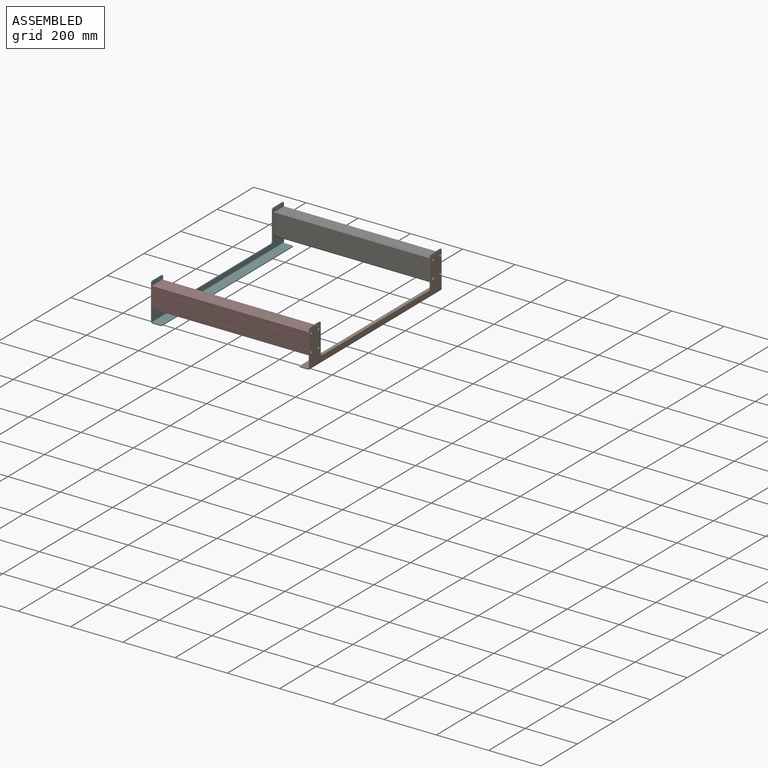
[diagram: assembled view]
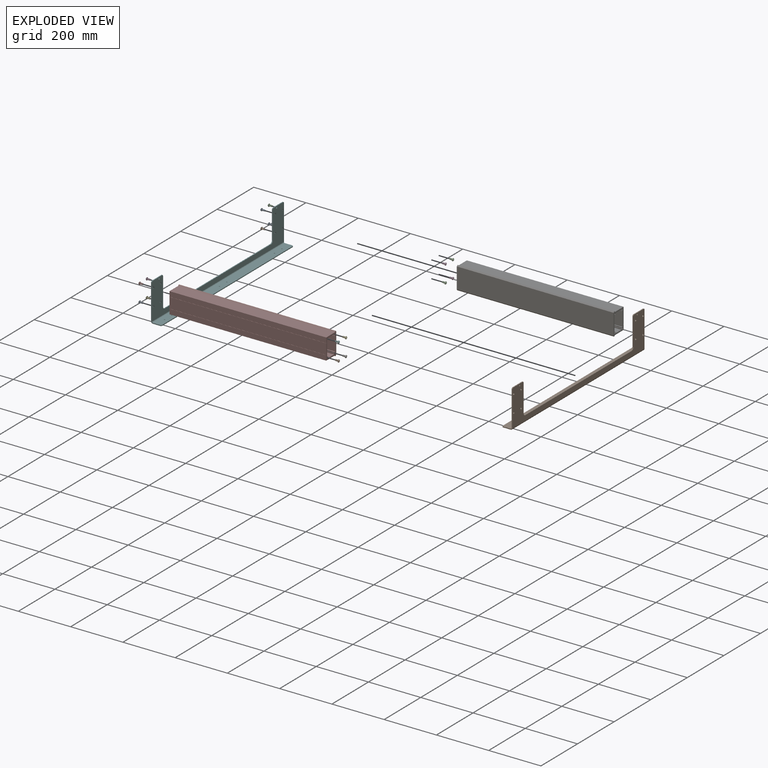
[diagram: exploded view]
GUIDED TOUR — MATED ASSEMBLY (Onshape document cfbdef88ee8c1fd4ca6eed88, AutoMate assembly cfbdef88ee8c1fd4ca6eed88_fefbfba56c5131276943adc2_0f6708e566215cdcc3e9fe7e_default)

This assembly has 20 components, labeled P0..P19 below (a component is one placed occurrence of a part; the same part can appear more than once), held together by 18 mates. A mate is a constraint between two components; its type names the relative motion it leaves free:
  FASTENED — locks the two components together rigidly (no relative motion).
Axis/direction vectors are unit vectors and 'through' points are millimeter coordinates, both in the assembly's world frame.

MATES
  1. FASTENED "Fastened 2": P18 <-> P17, direction (1.000, 0.000, 0.000) through (555.34, 199.08, 132.94) mm
  2. FASTENED "Fastened 1": P1 <-> P5, direction (-1.000, 0.000, 0.000) through (-52.10, 159.08, 67.94) mm
  3. FASTENED "Fastened 3": P6 <-> P5, direction (-1.000, 0.000, 0.000) through (-48.38, 159.08, 132.94) mm
  4. FASTENED "Fastened 1": P8 <-> P5, direction (-1.000, 0.000, 0.000) through (-52.10, 199.08, 67.94) mm
  5. FASTENED "Fastened 1": P15 <-> P5, direction (-1.000, 0.000, 0.000) through (-52.10, -507.65, 132.94) mm
  6. FASTENED "Fastened 2": P3 <-> P17, direction (1.000, 0.000, 0.000) through (555.34, 159.08, 132.94) mm
  7. FASTENED "Fastened 2": P14 <-> P17, direction (1.000, 0.000, 0.000) through (555.34, -467.65, 67.94) mm
  8. FASTENED "Fastened 2": P11 <-> P17, direction (1.000, 0.000, 0.000) through (555.34, 199.08, 67.94) mm
  9. FASTENED "Fastened 1": P0 <-> P5, direction (-1.000, 0.000, 0.000) through (-52.10, 159.08, 132.94) mm
  10. FASTENED "Fastened 1": P16 <-> P5, direction (-1.000, 0.000, 0.000) through (-52.10, -507.65, 67.94) mm
  11. FASTENED "Fastened 4": P7 <-> P5, direction (-1.000, 0.000, 0.000) through (-48.38, -467.65, 67.94) mm
  12. FASTENED "Fastened 2": P10 <-> P17, direction (1.000, 0.000, 0.000) through (555.34, 159.08, 67.94) mm
  13. FASTENED "Fastened 2": P12 <-> P17, direction (1.000, 0.000, 0.000) through (555.34, -467.65, 132.94) mm
  14. FASTENED "Fastened 1": P4 <-> P5, direction (-1.000, 0.000, 0.000) through (-52.10, -467.65, 67.94) mm
  15. FASTENED "Fastened 2": P13 <-> P17, direction (1.000, 0.000, 0.000) through (555.34, -507.65, 132.94) mm
  16. FASTENED "Fastened 1": P2 <-> P5, direction (-1.000, 0.000, 0.000) through (-52.10, 199.08, 132.94) mm
  17. FASTENED "Fastened 1": P19 <-> P5, direction (-1.000, 0.000, 0.000) through (-52.10, -467.65, 132.94) mm
  18. FASTENED "Fastened 2": P9 <-> P17, direction (1.000, 0.000, 0.000) through (555.34, -507.65, 67.94) mm

ASSEMBLY ORDER
  1. P14 — the base component [order verified]
  2. P12 [order verified]
  3. P7 [order verified]
  4. P19 [order verified]
  5. P4 [order verified]
  6. P10 [order verified]
  7. P3 [order verified]
  8. P1 [order verified]
  9. P0 [order verified]
  10. P6 [order verified]
  11. P18 [order verified]
  12. P11 [order verified]
  13. P16 [order verified]
  14. P15 [order verified]
  15. P8 [order verified]
  16. P2 [order verified]
  17. P13 [order verified]
  18. P9 [order verified]
  19. P17 [order verified]
  20. P5 [order verified]
(P2, P4, P6, P7, P8, P9, P11, P13, P15, P16, P18, P19 verified with a relaxed clearance tolerance: the source model stores slight part interference there.)
Order-tag legend:
  [order verified] — this step's position reverses a verified removal order: the component was checked to insert without passing through the ones already placed.

Of the 20 components, 2 carry the full construction recipe — the FeatureScript program that regenerates the part's solid from scratch; the rest are supplied as boundary geometry only.
Because this assembly has more than 12 components, the tour below covers the 12 most significant ones individually (every recipe-attached component first, then the largest by part volume), in assembly order; the remaining 8 are summarized together in a grouped section at the end.
Each toured component is shown spotlighted twice — in the assembled view, then in the exploded view, where a leader line traces a displaced component back to its assembled socket (saturated green if recipe-attached, orange if geometry-only; every other component desaturated gray) — followed by its recipe or geometry summary and the mates that hold it.
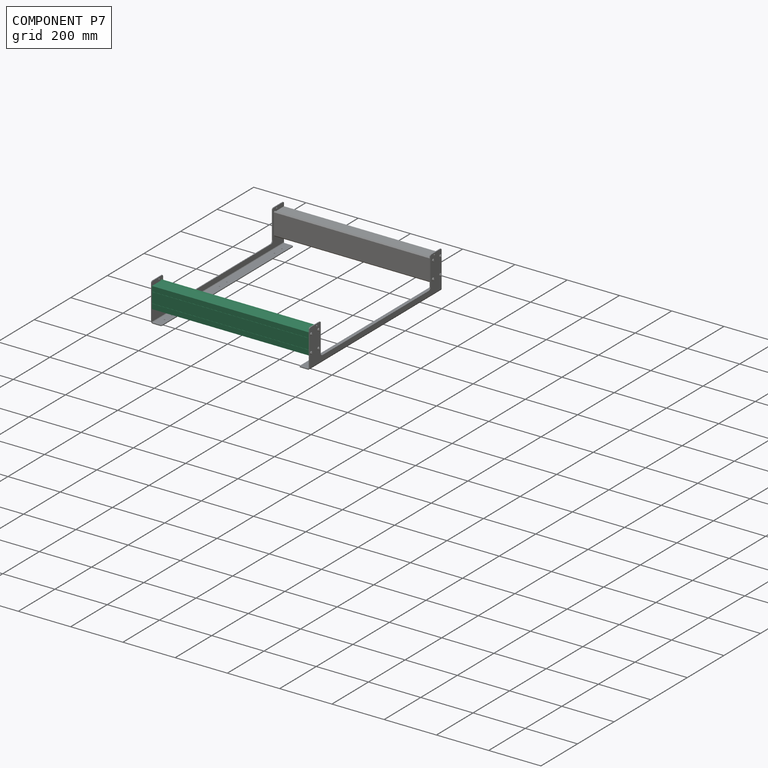
[diagram: component P7 — assembled]
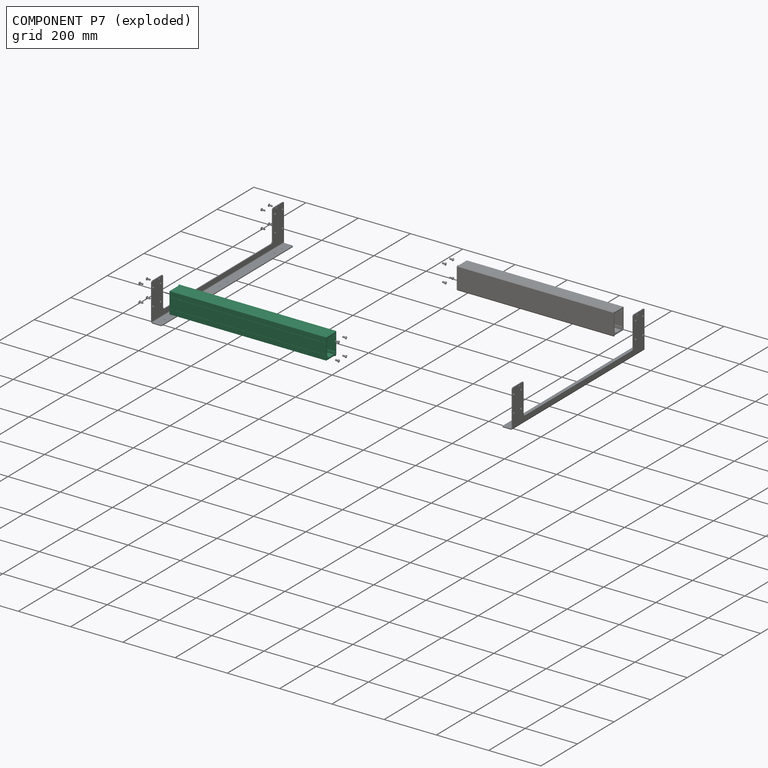
[diagram: component P7 — exploded]
COMPONENT P7 — same part as P6 (CADFS 00185293); its construction recipe is shown at P6.
Held by: FASTENED mate "Fastened 4" to P5.
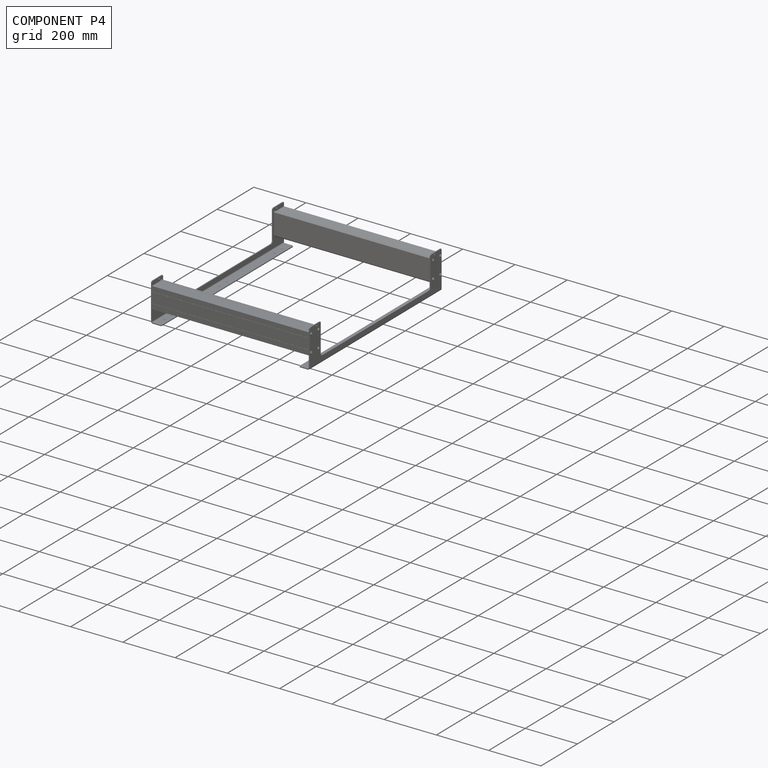
[diagram: component P4 — assembled]
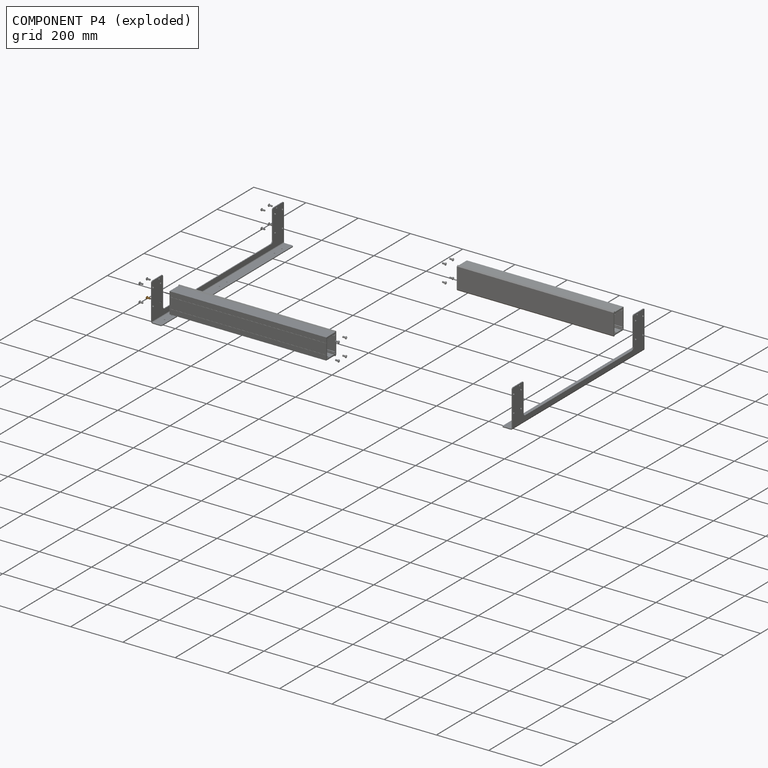
[diagram: component P4 — exploded]
COMPONENT P4 — geometry summary (no construction recipe available for this part):
  bounding box: 16.5 x 11.4 x 11.4 mm
  B-rep topology: 1 solid, 47 faces, 246 edges
  volume: 449 mm^3 (21% of its bounding box)
Held by: FASTENED mate "Fastened 1" to P5.
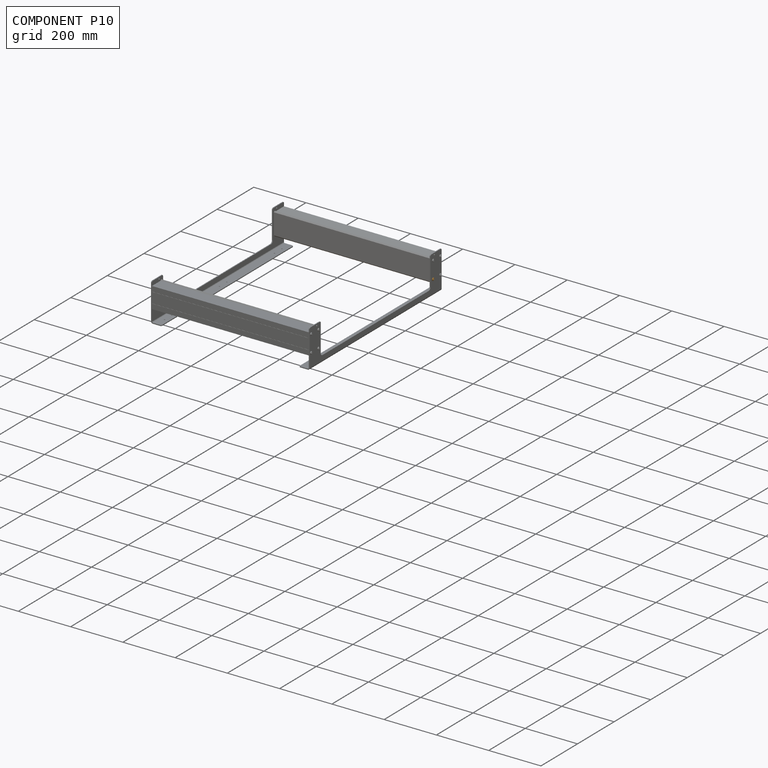
[diagram: component P10 — assembled]
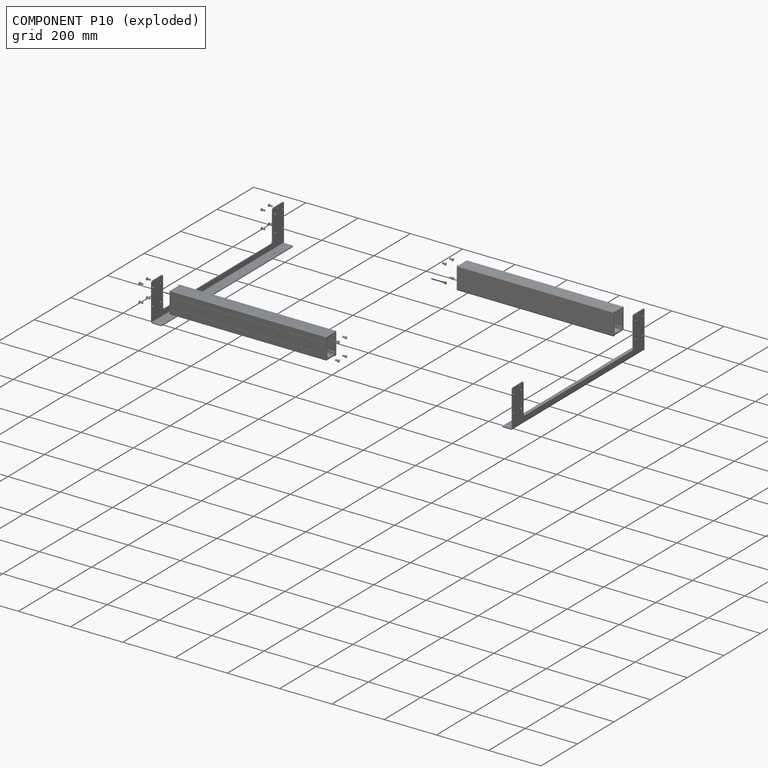
[diagram: component P10 — exploded]
COMPONENT P10 — geometry summary (no construction recipe available for this part):
  bounding box: 16.5 x 11.4 x 11.4 mm
  B-rep topology: 1 solid, 47 faces, 246 edges
  volume: 449 mm^3 (21% of its bounding box)
Held by: FASTENED mate "Fastened 2" to P17.
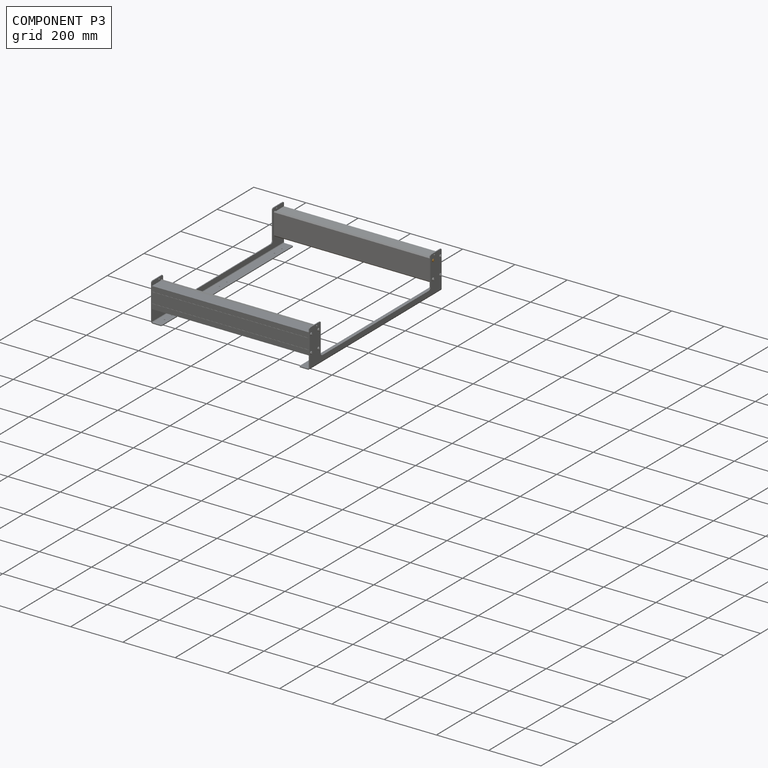
[diagram: component P3 — assembled]
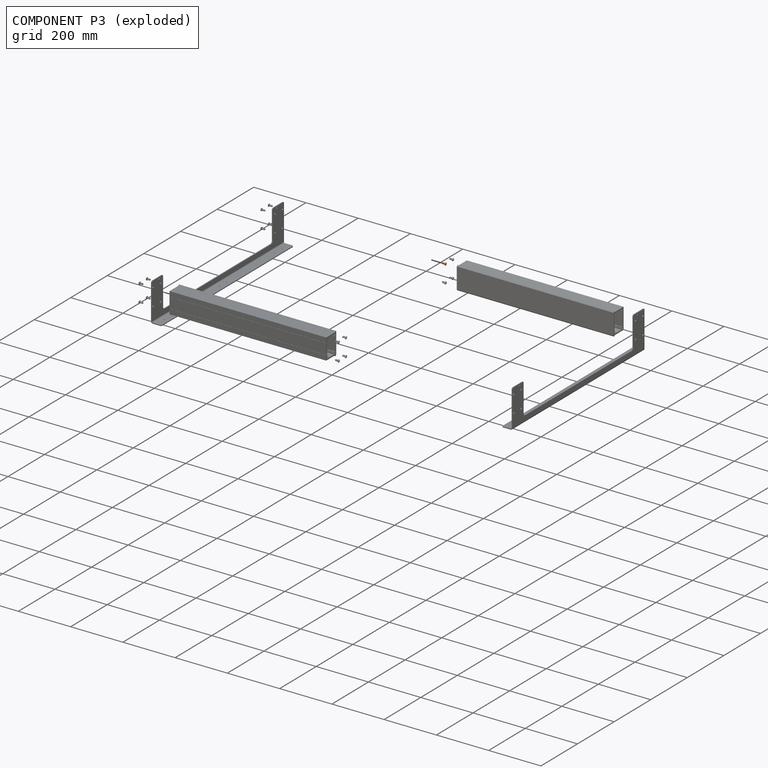
[diagram: component P3 — exploded]
COMPONENT P3 — geometry summary (no construction recipe available for this part):
  bounding box: 16.5 x 11.4 x 11.4 mm
  B-rep topology: 1 solid, 47 faces, 246 edges
  volume: 449 mm^3 (21% of its bounding box)
Held by: FASTENED mate "Fastened 2" to P17.
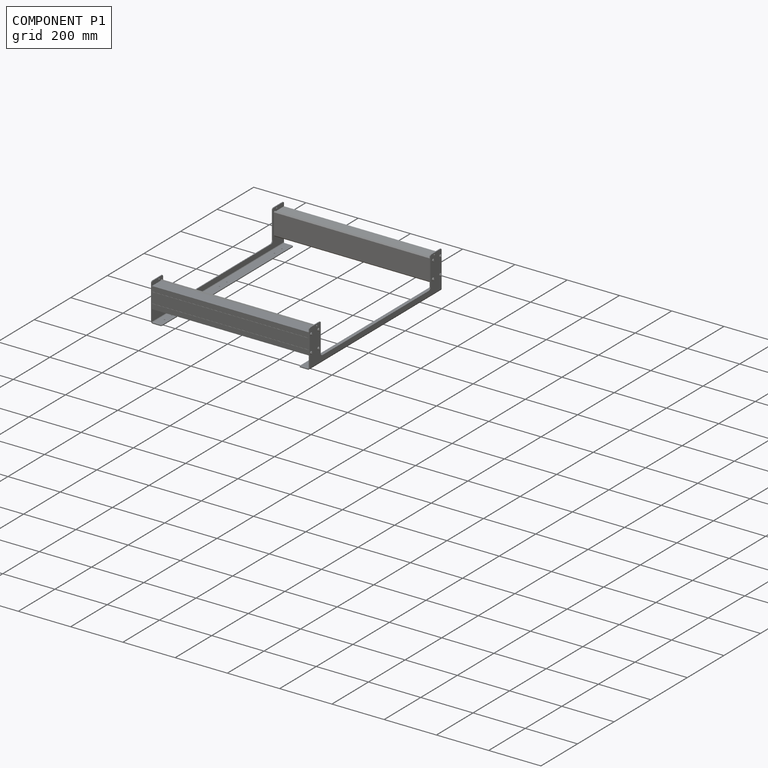
[diagram: component P1 — assembled]
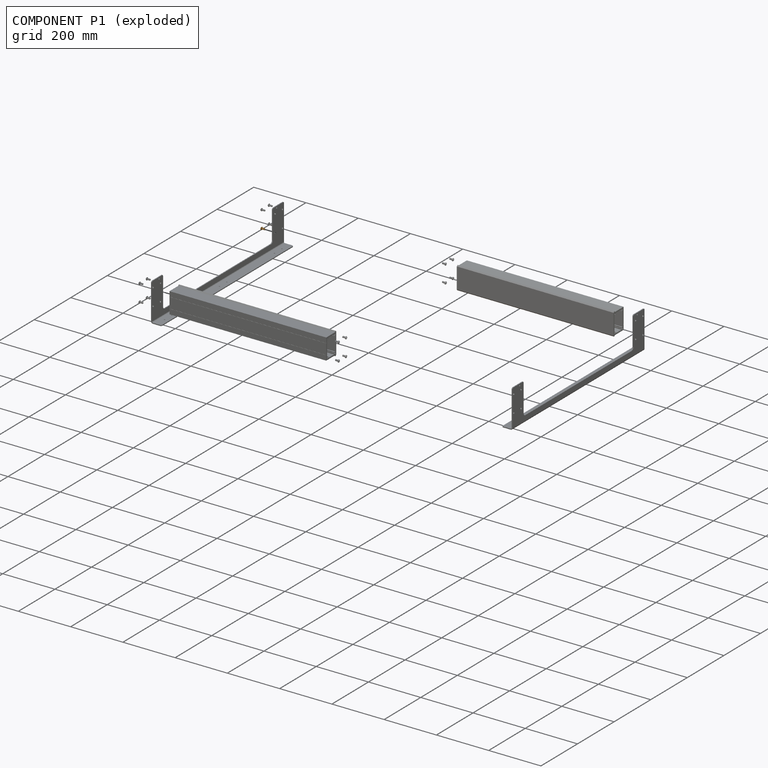
[diagram: component P1 — exploded]
COMPONENT P1 — geometry summary (no construction recipe available for this part):
  bounding box: 16.5 x 11.4 x 11.4 mm
  B-rep topology: 1 solid, 47 faces, 246 edges
  volume: 449 mm^3 (21% of its bounding box)
Held by: FASTENED mate "Fastened 1" to P5.
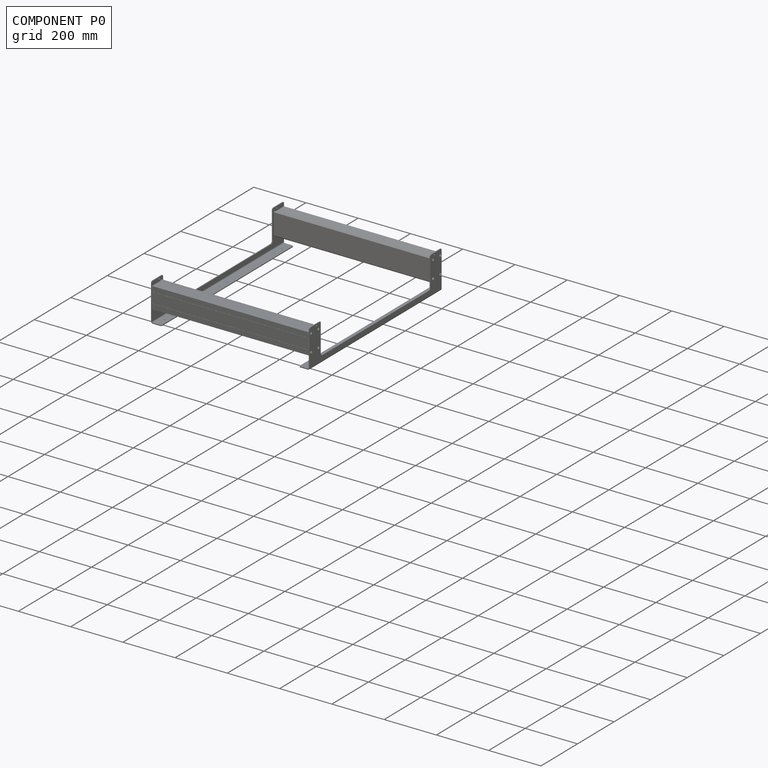
[diagram: component P0 — assembled]
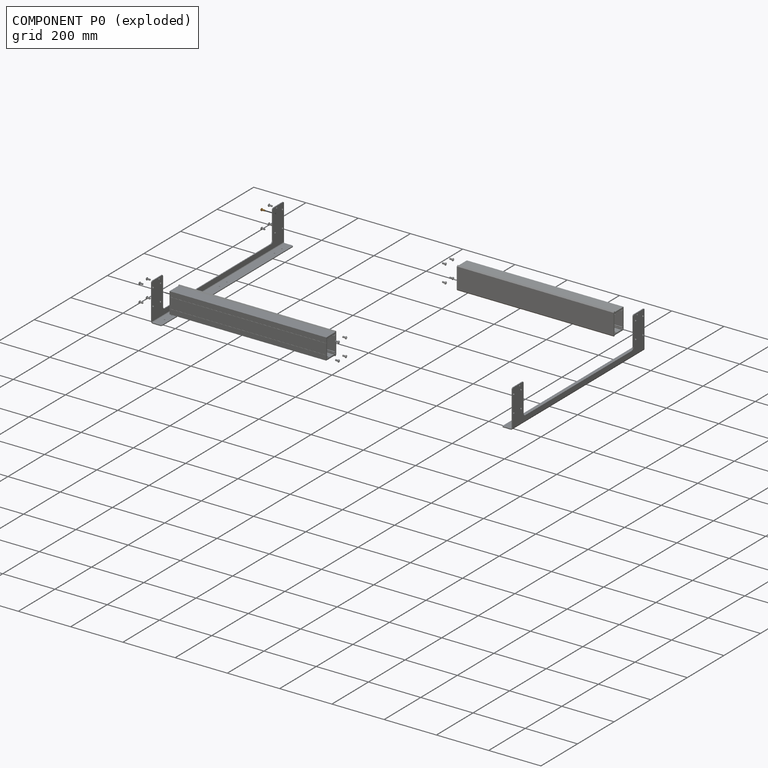
[diagram: component P0 — exploded]
COMPONENT P0 — geometry summary (no construction recipe available for this part):
  bounding box: 16.5 x 11.4 x 11.4 mm
  B-rep topology: 1 solid, 47 faces, 246 edges
  volume: 449 mm^3 (21% of its bounding box)
Held by: FASTENED mate "Fastened 1" to P5.
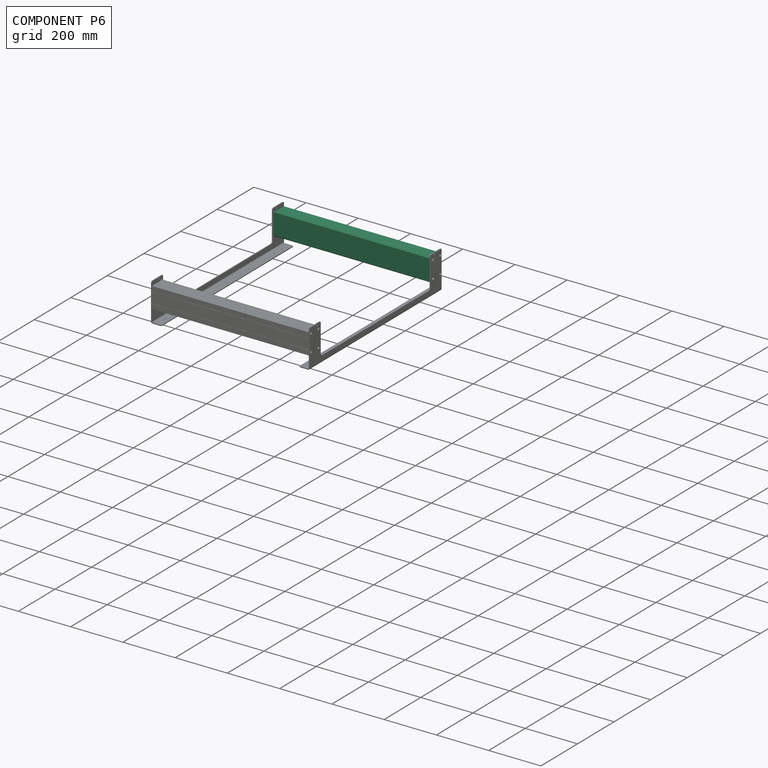
[diagram: component P6 — assembled]
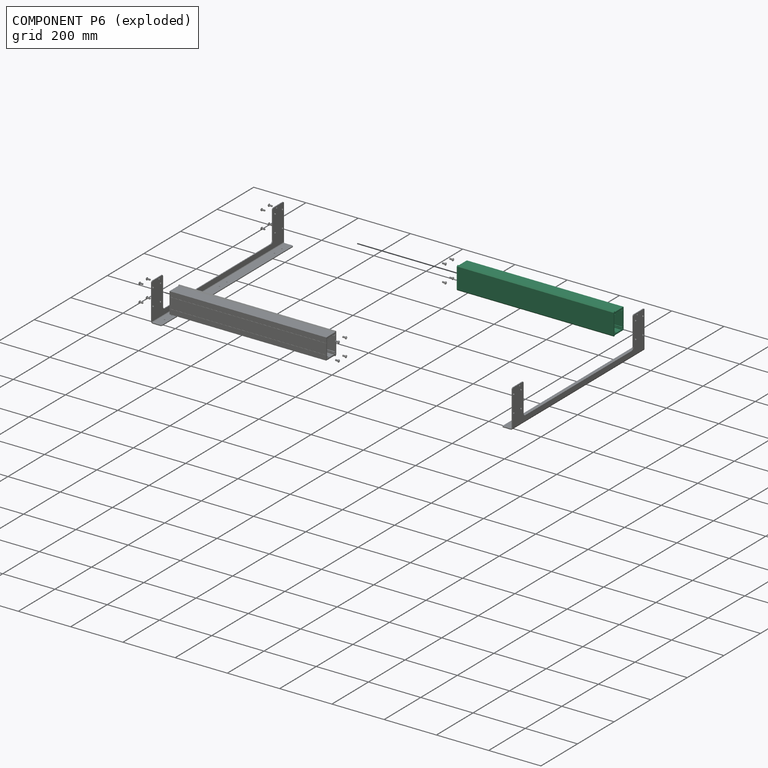
[diagram: component P6 — exploded]
COMPONENT P6 — recipe-attached (CADFS 00185293, mesh-verified: the recipe's output STEP matches this component's geometry to below the mesh-comparison resolution (tessellation chordal tolerance ~0.913 mm)).
Held by: FASTENED mate "Fastened 3" to P5.
Construction recipe (FeatureScript — the CAD program that rebuilds this solid; sketch coordinates are in the units given by the * unit suffixes, e.g. mm):

FeatureScript 1511;
import(path : "onshape/std/geometry.fs", version : "1511.0");
import(path : "onshape/std/common.fs", version : "1511.0");
const mm = millimeter;
const VERTEX = EntityType.VERTEX;
const EDGE = EntityType.EDGE;
const FACE = EntityType.FACE;
const BODY = EntityType.BODY;
function v(x, y){return vector(x, y);}
function OD(order){return orderDisambiguation(order);}
function OSD(set){return originalSetDisambiguation(set);}
function TD(topology){return topologyDisambiguation(topology);}
function TDD(query){return trueDependencyDisambiguation(query);}
function sQuery(a, b, c) {return sketchEntityQuery(a, b, c);}

annotation { "Feature Type Name" : "Feature", "Feature Type Description" : "" }
export const myFeature = defineFeature(function(context is Context, id is Id, definition is map)
    precondition{}
    {
        {
            var Q0;
            Q0=qCreatedBy(makeId("Front.planeOp"),FACE);
            var sketch = newSketch(context, id + "F0", { "sketchPlane" : qUnion([Q0])});
            skLineSegment(sketch, "E0", {"start": v(0, 0) * mm, "end": v(0, 80) * mm});
            skLineSegment(sketch, "E1", {"start": v(0, 80) * mm, "end": v(4, 84) * mm});
            skLineSegment(sketch, "E2", {"start": v(4, 84) * mm, "end": v(8, 80) * mm});
            skLineSegment(sketch, "E3", {"start": v(8, 80) * mm, "end": v(27, 80) * mm});
            skLineSegment(sketch, "E4", {"start": v(27, 80) * mm, "end": v(27.5, 79.5) * mm});
            skLineSegment(sketch, "E5", {"start": v(27.5, 79.5) * mm, "end": v(28, 80) * mm});
            skLineSegment(sketch, "E6", {"start": v(28, 80) * mm, "end": v(55, 80) * mm});
            skLineSegment(sketch, "E7", {"start": v(55, 80) * mm, "end": v(55, 61) * mm});
            skLineSegment(sketch, "E8", {"start": v(55, 61) * mm, "end": v(54.5, 60.5) * mm});
            skLineSegment(sketch, "E9", {"start": v(54.5, 60.5) * mm, "end": v(55, 60) * mm});
            skLineSegment(sketch, "E10", {"start": v(55, 60) * mm, "end": v(55, 20) * mm});
            skLineSegment(sketch, "E11", {"start": v(55, 20) * mm, "end": v(54.5, 19.5) * mm});
            skLineSegment(sketch, "E12", {"start": v(54.5, 19.5) * mm, "end": v(55, 19) * mm});
            skLineSegment(sketch, "E13", {"start": v(55, 19) * mm, "end": v(55, 0) * mm});
            skLineSegment(sketch, "E14", {"start": v(55, 0) * mm, "end": v(28, 0) * mm});
            skLineSegment(sketch, "E15", {"start": v(28, 0) * mm, "end": v(27.5, 0.5) * mm});
            skLineSegment(sketch, "E16", {"start": v(27.5, 0.5) * mm, "end": v(27, 0) * mm});
            skLineSegment(sketch, "E17", {"start": v(27, 0) * mm, "end": v(8, 0) * mm});
            skLineSegment(sketch, "E18", {"start": v(8, 0) * mm, "end": v(4, -4) * mm});
            skLineSegment(sketch, "E19", {"start": v(4, -4) * mm, "end": v(0, 0) * mm});
            skSolve(sketch);
        }
        {
            var Q0;
            Q0=makeQuery(id+"F0.imprint","IMPRINT",FACE,{"disambiguationData":[TD([[makeQuery(id+"F0.imprint","IMPRINT",EDGE,{"derivedFrom":sQuery(id+"F0.wireOp",EDGE,"E0")}),-1.0]])]});
            extrude(context, id + "F1", {"entities" : qUnion([Q0]), "depth" : 600 * mm});
        }
        {
            var Q0;
            Q0=qCreatedBy(makeId("Front.planeOp"),FACE);
            var sketch = newSketch(context, id + "F2", { "sketchPlane" : qUnion([Q0])});
            skLineSegment(sketch, "E20.bottom", {"start": v(7.5, 72.5) * mm, "end": v(47.5, 72.5) * mm, "construction": true});
            skLineSegment(sketch, "E20.top", {"start": v(7.5, 7.5) * mm, "end": v(47.5, 7.5) * mm, "construction": true});
            skLineSegment(sketch, "E20.left", {"start": v(7.5, 72.5) * mm, "end": v(7.5, 7.5) * mm, "construction": true});
            skLineSegment(sketch, "E20.right", {"start": v(47.5, 72.5) * mm, "end": v(47.5, 7.5) * mm, "construction": true});
            skLineSegment(sketch, "E21.bottom", {"start": v(5, 75) * mm, "end": v(50, 75) * mm, "construction": true});
            skLineSegment(sketch, "E21.top", {"start": v(5, 5) * mm, "end": v(50, 5) * mm, "construction": true});
            skLineSegment(sketch, "E21.left", {"start": v(5, 75) * mm, "end": v(5, 5) * mm, "construction": true});
            skLineSegment(sketch, "E21.right", {"start": v(50, 75) * mm, "end": v(50, 5) * mm, "construction": true});
            skLineSegment(sketch, "E22.bottom", {"start": v(9.4, 70.6) * mm, "end": v(45.6, 70.6) * mm, "construction": true});
            skLineSegment(sketch, "E22.top", {"start": v(9.4, 9.4) * mm, "end": v(45.6, 9.4) * mm, "construction": true});
            skLineSegment(sketch, "E22.left", {"start": v(9.4, 70.6) * mm, "end": v(9.4, 9.4) * mm, "construction": true});
            skLineSegment(sketch, "E22.right", {"start": v(45.6, 70.6) * mm, "end": v(45.6, 9.4) * mm, "construction": true});
            skLineSegment(sketch, "E23", {"start": v(9.4, 12) * mm, "end": v(5, 12) * mm});
            skLineSegment(sketch, "E24", {"start": v(5, 12) * mm, "end": v(5, 68) * mm});
            skLineSegment(sketch, "E25", {"start": v(5, 68) * mm, "end": v(9.4, 68) * mm});
            skLineSegment(sketch, "E26", {"start": v(9.4, 68) * mm, "end": v(12, 70.6) * mm, "construction": true});
            skLineSegment(sketch, "E27", {"start": v(12, 70.6) * mm, "end": v(12, 75) * mm});
            skLineSegment(sketch, "E28", {"start": v(12, 75) * mm, "end": v(43, 75) * mm});
            skLineSegment(sketch, "E29", {"start": v(43, 75) * mm, "end": v(43, 70.6) * mm});
            skLineSegment(sketch, "E30", {"start": v(43, 70.6) * mm, "end": v(45.6, 68) * mm, "construction": true});
            skLineSegment(sketch, "E31", {"start": v(45.6, 68) * mm, "end": v(50, 68) * mm});
            skLineSegment(sketch, "E32", {"start": v(50, 68) * mm, "end": v(50, 12) * mm});
            skLineSegment(sketch, "E33", {"start": v(50, 12) * mm, "end": v(45.6, 12) * mm});
            skLineSegment(sketch, "E34", {"start": v(45.6, 12) * mm, "end": v(43, 9.4) * mm, "construction": true});
            skLineSegment(sketch, "E35", {"start": v(43, 9.4) * mm, "end": v(43, 5) * mm});
            skLineSegment(sketch, "E36", {"start": v(43, 5) * mm, "end": v(12, 5) * mm});
            skLineSegment(sketch, "E37", {"start": v(12, 5) * mm, "end": v(12, 9.4) * mm});
            skLineSegment(sketch, "E38", {"start": v(12, 9.4) * mm, "end": v(9.4, 12) * mm, "construction": true});
            skArc(sketch, "E39", {"start": v(9.65, 71.23) * mm, "mid": v(5.73, 74.27) * mm, "end": v(8.77, 70.35) * mm});
            skLineSegment(sketch, "E40", {"start": v(8.77, 70.35) * mm, "end": v(9.4, 68) * mm});
            skLineSegment(sketch, "E41", {"start": v(9.65, 71.23) * mm, "end": v(12, 70.6) * mm});
            skLineSegment(sketch, "E42", {"start": v(7.5, 72.5) * mm, "end": v(9.4, 70.6) * mm, "construction": true});
            skLineSegment(sketch, "E43", {"start": v(9.65, 71.23) * mm, "end": v(8.77, 70.35) * mm, "construction": true});
            skPoint(sketch, "E44", {"position": v(9.21, 70.79) * mm});
            skArc(sketch, "E45", {"start": v(8.16, 9.91) * mm, "mid": v(5.73, 5.73) * mm, "end": v(9.91, 8.16) * mm});
            skLineSegment(sketch, "E46", {"start": v(9.4, 12) * mm, "end": v(8.16, 9.91) * mm});
            skLineSegment(sketch, "E47", {"start": v(12, 9.4) * mm, "end": v(9.91, 8.16) * mm});
            skArc(sketch, "E48", {"start": v(45.09, 8.16) * mm, "mid": v(49.27, 5.73) * mm, "end": v(46.84, 9.91) * mm});
            skLineSegment(sketch, "E49", {"start": v(43, 9.4) * mm, "end": v(45.09, 8.16) * mm});
            skLineSegment(sketch, "E50", {"start": v(45.6, 12) * mm, "end": v(46.84, 9.91) * mm});
            skArc(sketch, "E51", {"start": v(45.35, 71.23) * mm, "mid": v(49.27, 74.27) * mm, "end": v(46.23, 70.35) * mm});
            skLineSegment(sketch, "E52", {"start": v(45.35, 71.23) * mm, "end": v(46.23, 70.35) * mm, "construction": true});
            skLineSegment(sketch, "E53", {"start": v(47.5, 72.5) * mm, "end": v(44.3, 69.3) * mm, "construction": true});
            skPoint(sketch, "E54", {"position": v(45.79, 70.79) * mm});
            skLineSegment(sketch, "E55", {"start": v(45.35, 71.23) * mm, "end": v(43, 70.6) * mm});
            skLineSegment(sketch, "E56", {"start": v(46.23, 70.35) * mm, "end": v(45.6, 68) * mm});
            skSolve(sketch);
        }
        {
            var Q0;
            Q0=qSketchRegion(id+"F2",true);
            extrude(context, id + "F3", {"entities" : qUnion([Q0]), "operationType" : NewBodyOperationType.REMOVE, "endBound" : BoundingType.UP_TO_NEXT, "depth" : 600 * mm});
        }
    });
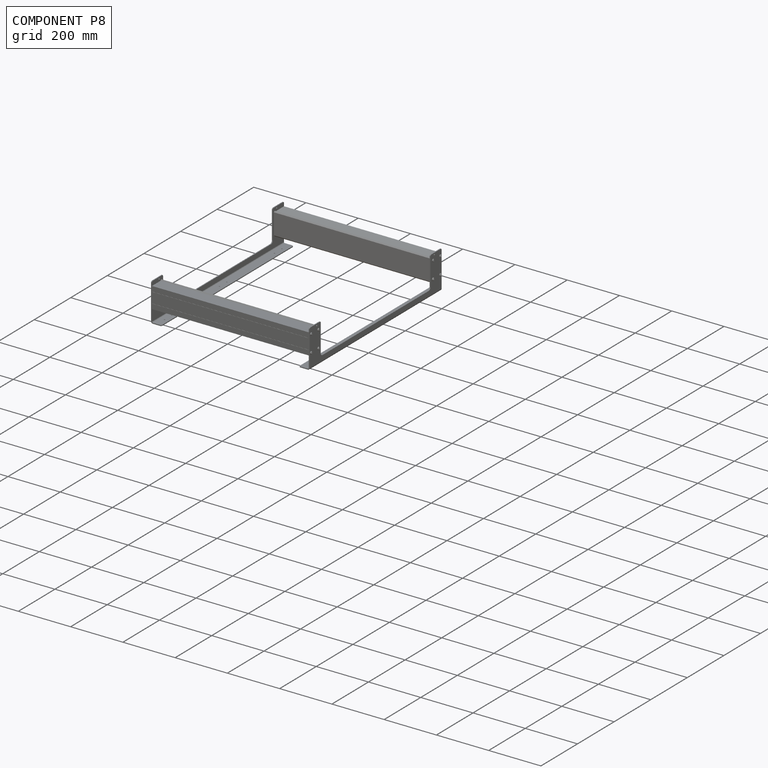
[diagram: component P8 — assembled]
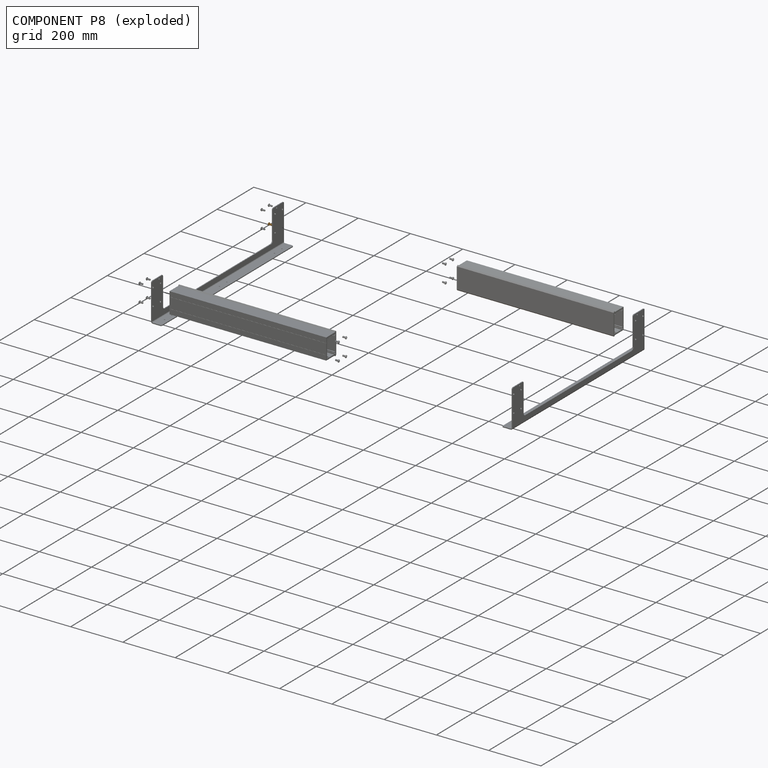
[diagram: component P8 — exploded]
COMPONENT P8 — geometry summary (no construction recipe available for this part):
  bounding box: 16.5 x 11.4 x 11.4 mm
  B-rep topology: 1 solid, 47 faces, 246 edges
  volume: 449 mm^3 (21% of its bounding box)
Held by: FASTENED mate "Fastened 1" to P5.
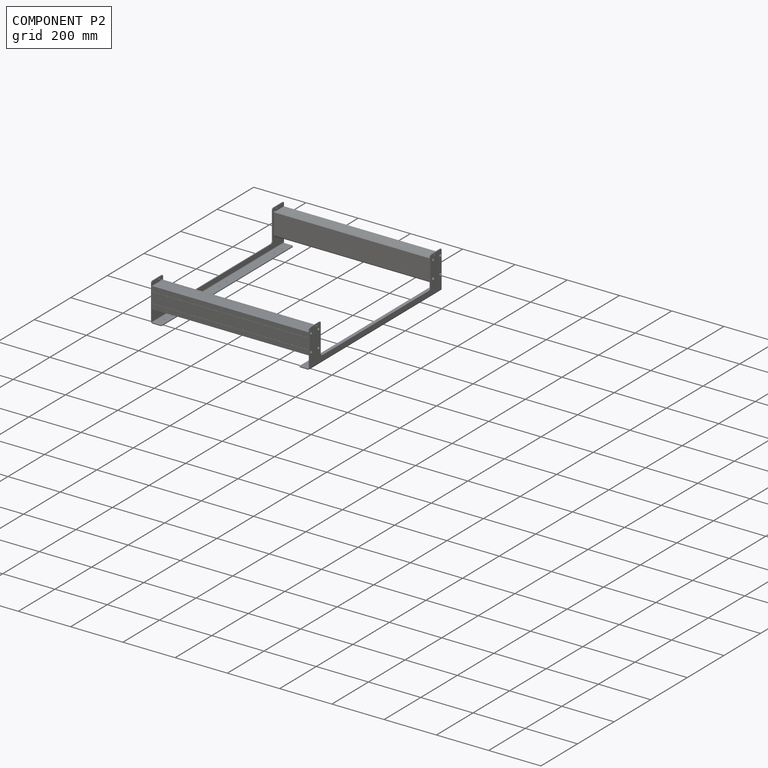
[diagram: component P2 — assembled]
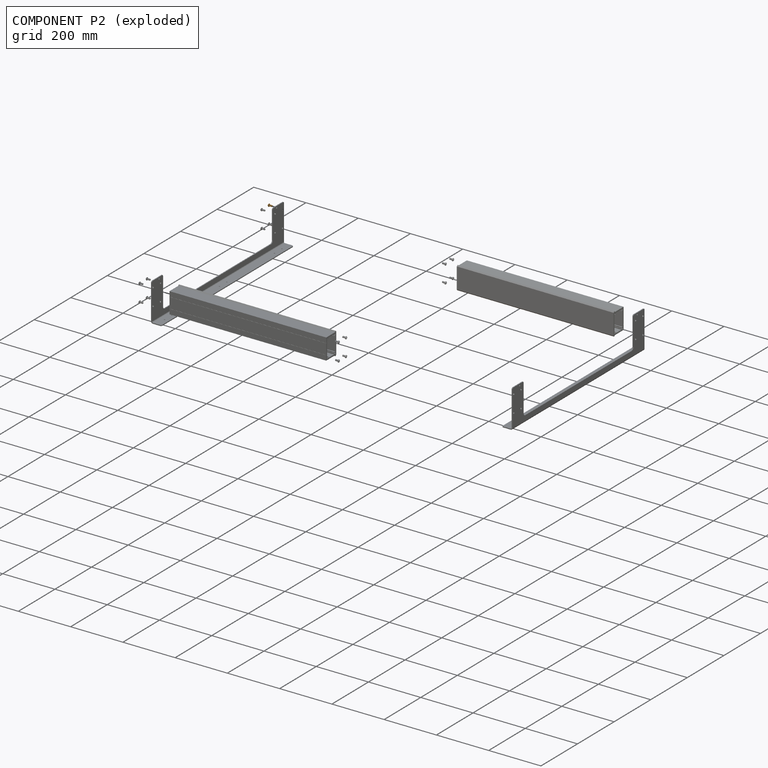
[diagram: component P2 — exploded]
COMPONENT P2 — geometry summary (no construction recipe available for this part):
  bounding box: 16.5 x 11.4 x 11.4 mm
  B-rep topology: 1 solid, 47 faces, 246 edges
  volume: 449 mm^3 (21% of its bounding box)
Held by: FASTENED mate "Fastened 1" to P5.
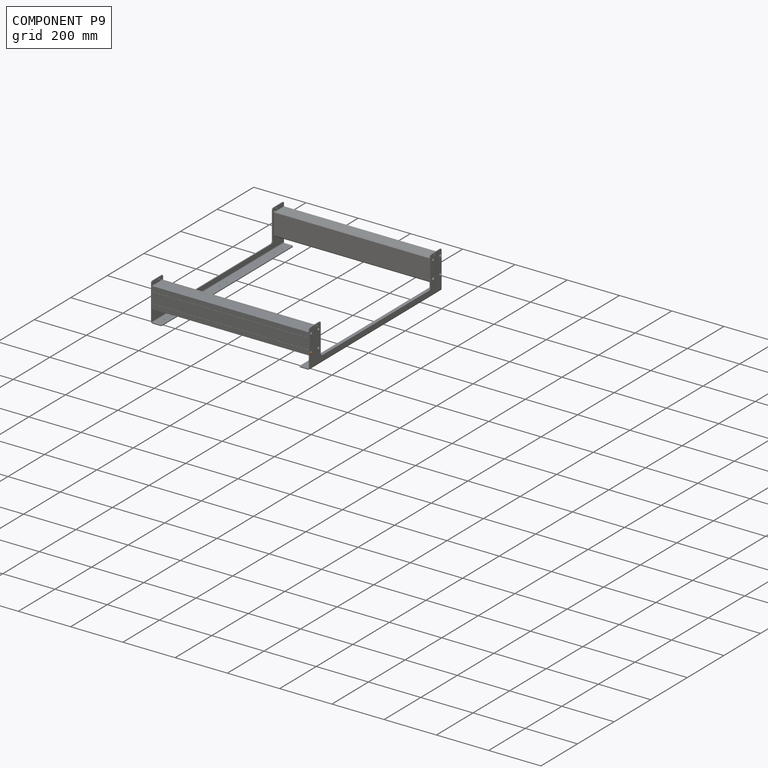
[diagram: component P9 — assembled]
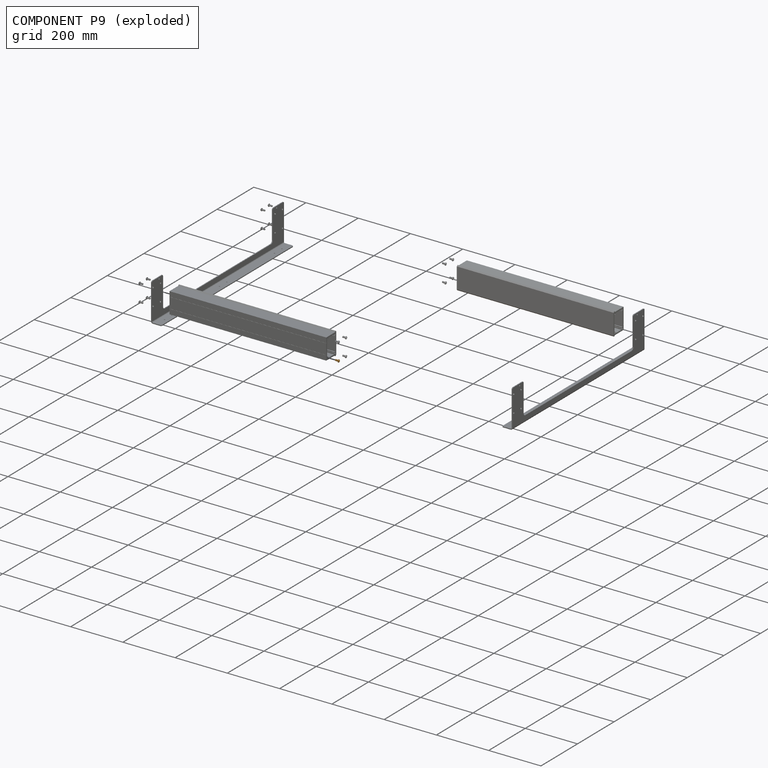
[diagram: component P9 — exploded]
COMPONENT P9 — geometry summary (no construction recipe available for this part):
  bounding box: 16.5 x 11.4 x 11.4 mm
  B-rep topology: 1 solid, 47 faces, 246 edges
  volume: 449 mm^3 (21% of its bounding box)
Held by: FASTENED mate "Fastened 2" to P17.
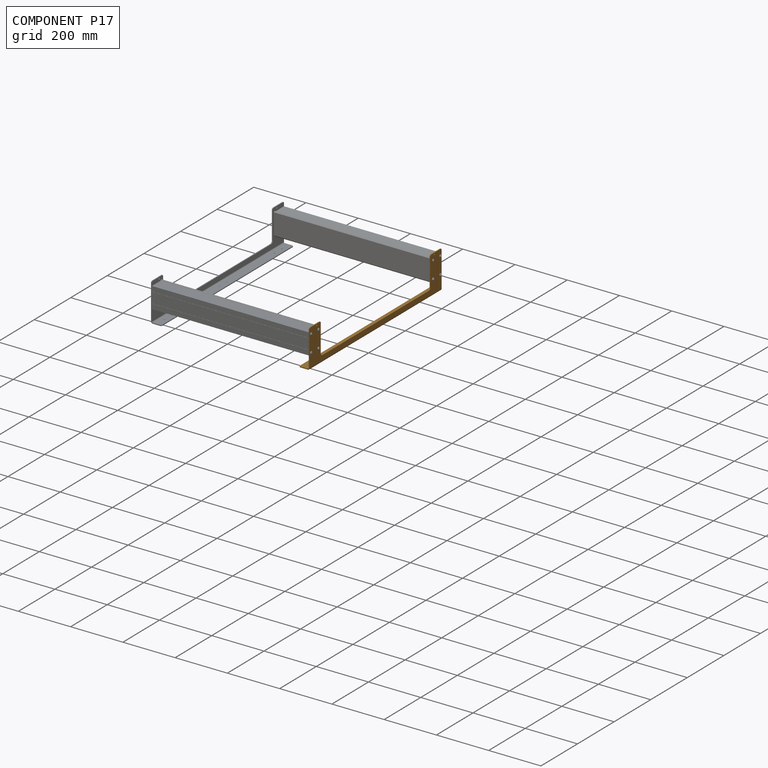
[diagram: component P17 — assembled]
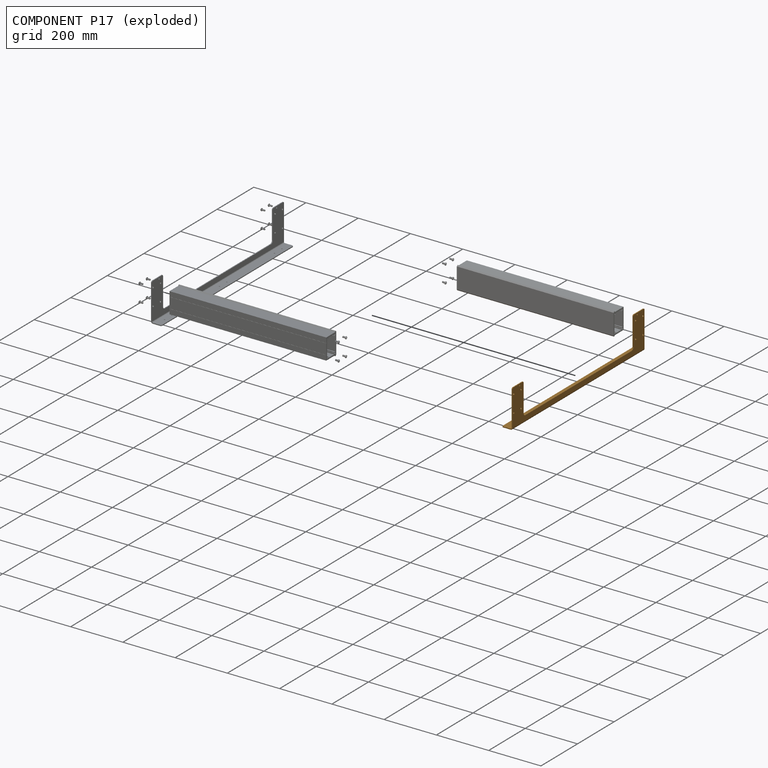
[diagram: component P17 — exploded]
COMPONENT P17 — geometry summary (no construction recipe available for this part):
  bounding box: 721.7 x 147.6 x 40.0 mm
  B-rep topology: 1 solid, 50 faces, 284 edges
  volume: 196996 mm^3 (5% of its bounding box)
  symmetry: mirror-symmetric across its y mid-plane
Held by: FASTENED mate "Fastened 2" to P18; FASTENED mate "Fastened 2" to P3; FASTENED mate "Fastened 2" to P14; FASTENED mate "Fastened 2" to P11; FASTENED mate "Fastened 2" to P10; FASTENED mate "Fastened 2" to P12; FASTENED mate "Fastened 2" to P13; FASTENED mate "Fastened 2" to P9.
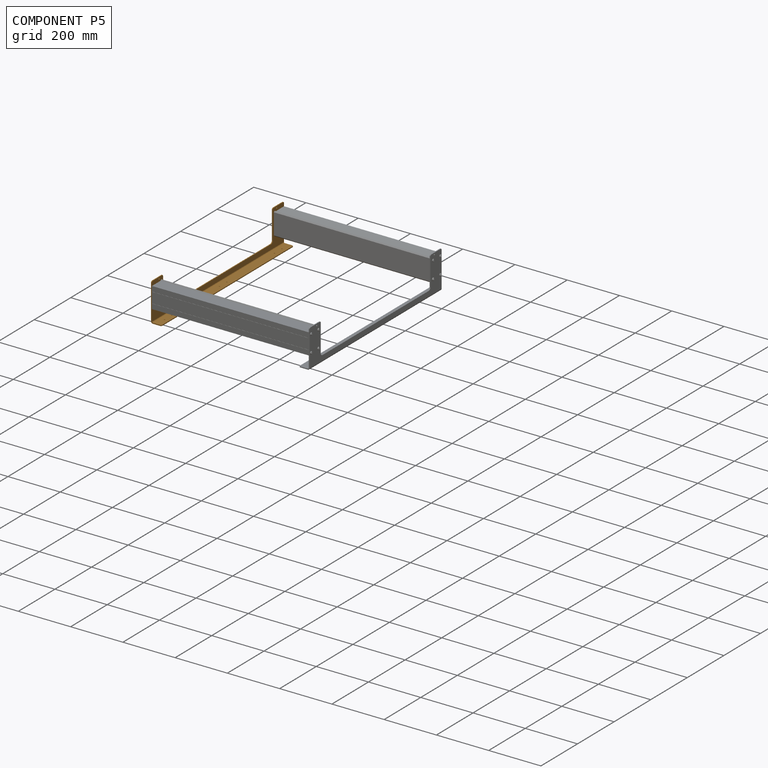
[diagram: component P5 — assembled]
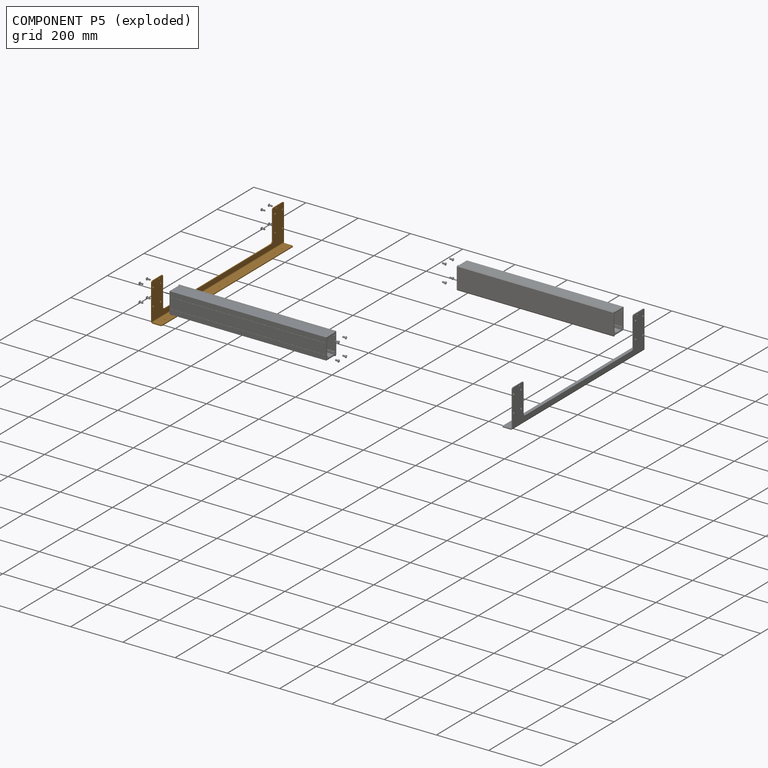
[diagram: component P5 — exploded]
COMPONENT P5 — geometry summary (no construction recipe available for this part):
  bounding box: 721.7 x 147.6 x 40.0 mm
  B-rep topology: 1 solid, 50 faces, 284 edges
  volume: 196996 mm^3 (5% of its bounding box)
  symmetry: mirror-symmetric across its y mid-plane
Held by: FASTENED mate "Fastened 1" to P1; FASTENED mate "Fastened 3" to P6; FASTENED mate "Fastened 1" to P8; FASTENED mate "Fastened 1" to P15; FASTENED mate "Fastened 1" to P0; FASTENED mate "Fastened 1" to P16; FASTENED mate "Fastened 4" to P7; FASTENED mate "Fastened 1" to P4; FASTENED mate "Fastened 1" to P2; FASTENED mate "Fastened 1" to P19.
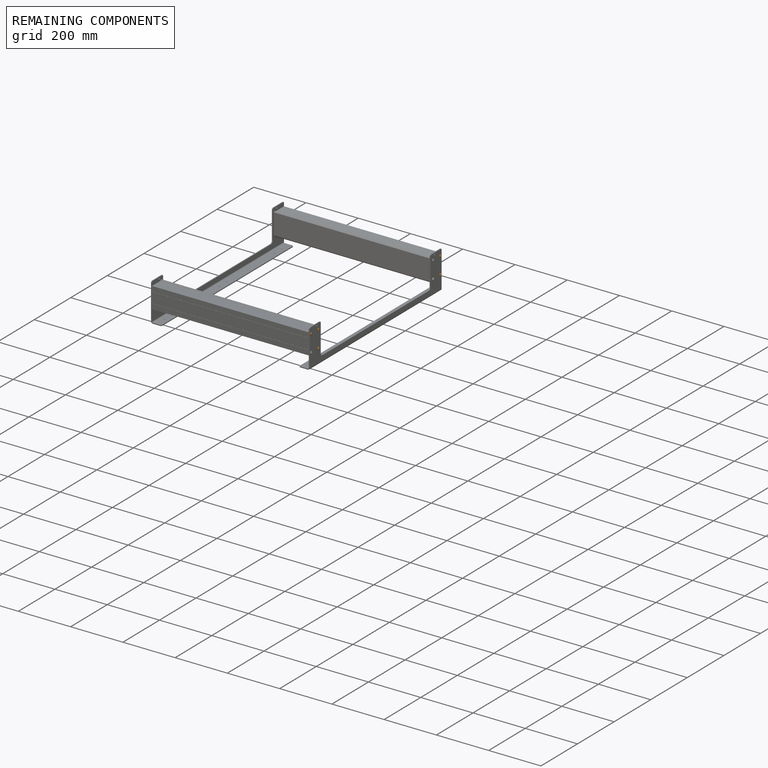
[diagram: remaining components — assembled]
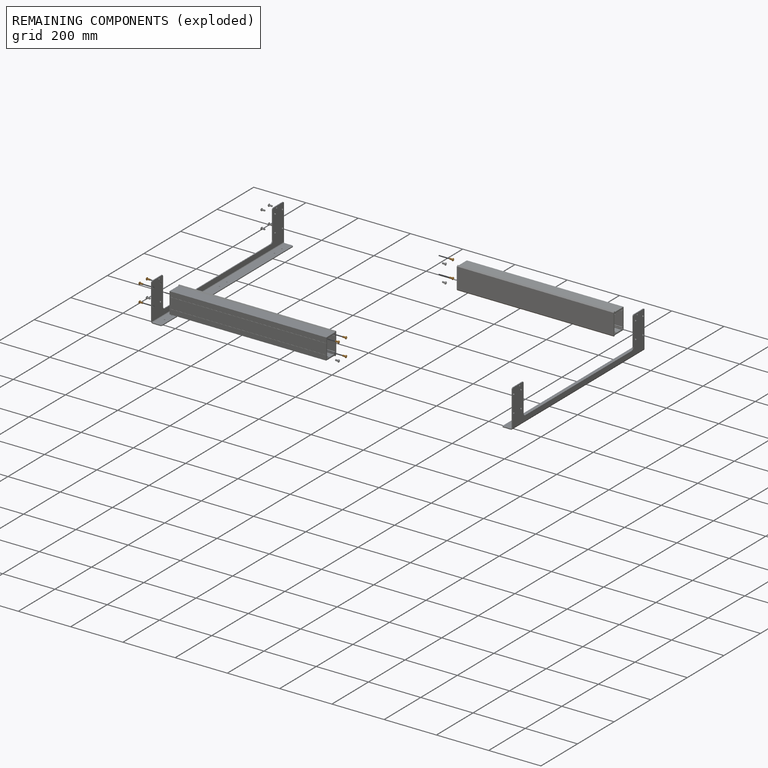
[diagram: remaining components — exploded]
REMAINING COMPONENTS (grouped) — the 8 components below fall outside the per-component tour by the significance rule stated above; both spotlight views highlight the whole group.
  P14: bounding box 16.5 x 11.4 x 11.4 mm, volume 449 mm^3. Held by: FASTENED mate "Fastened 2" to P17.
  P12: bounding box 16.5 x 11.4 x 11.4 mm, volume 449 mm^3. Held by: FASTENED mate "Fastened 2" to P17.
  P19: bounding box 16.5 x 11.4 x 11.4 mm, volume 449 mm^3. Held by: FASTENED mate "Fastened 1" to P5.
  P18: bounding box 16.5 x 11.4 x 11.4 mm, volume 449 mm^3. Held by: FASTENED mate "Fastened 2" to P17.
  P11: bounding box 16.5 x 11.4 x 11.4 mm, volume 449 mm^3. Held by: FASTENED mate "Fastened 2" to P17.
  P16: bounding box 16.5 x 11.4 x 11.4 mm, volume 449 mm^3. Held by: FASTENED mate "Fastened 1" to P5.
  P15: bounding box 16.5 x 11.4 x 11.4 mm, volume 449 mm^3. Held by: FASTENED mate "Fastened 1" to P5.
  P13: bounding box 16.5 x 11.4 x 11.4 mm, volume 449 mm^3. Held by: FASTENED mate "Fastened 2" to P17.
PROVENANCE & LICENSES
Assembly (occurrences, transforms, mates, per-part STEP geometry): AutoMate dataset, Zenodo record 7776208, CC0.
Construction recipes: CADFS (HuggingFace VladPyatov/CADFS, CC-BY-4.0, layered over the ABC dataset), FeatureScript reconstruction programs keyed by ABC model id.
Join: ABC meta listings map ABC model id -> Onshape documentId; within a shared document, parts are matched by geometric signature (bounding-box dims + volume at 0.1% relative tolerance, exact B-rep face/solid counts).
Verification: 2 of this assembly's 20 components carry a recipe attachment, and every attachment is mesh-verified: the CADFS STEP and the AutoMate member STEP were compared as meshes in their shared local frame (symmetric sampled-point-to-mesh distance); worst across the 2 attachments: below the mesh-comparison resolution (tessellation chordal tolerance ~0.913 mm) on a 609 mm part.
Renders: orthographic iso camera (az 35 / el 25); the floor grid conveys scale (grid pitch printed in each image; no ruler). In the exploded view each component is displaced by its stored offset vector: the offsets alone carry the explosion direction (mate normal/axis signs are not orientation cues and do not encode it), and separation distances are assigned per mate-chain, not proportionally to assembly-order depth.
